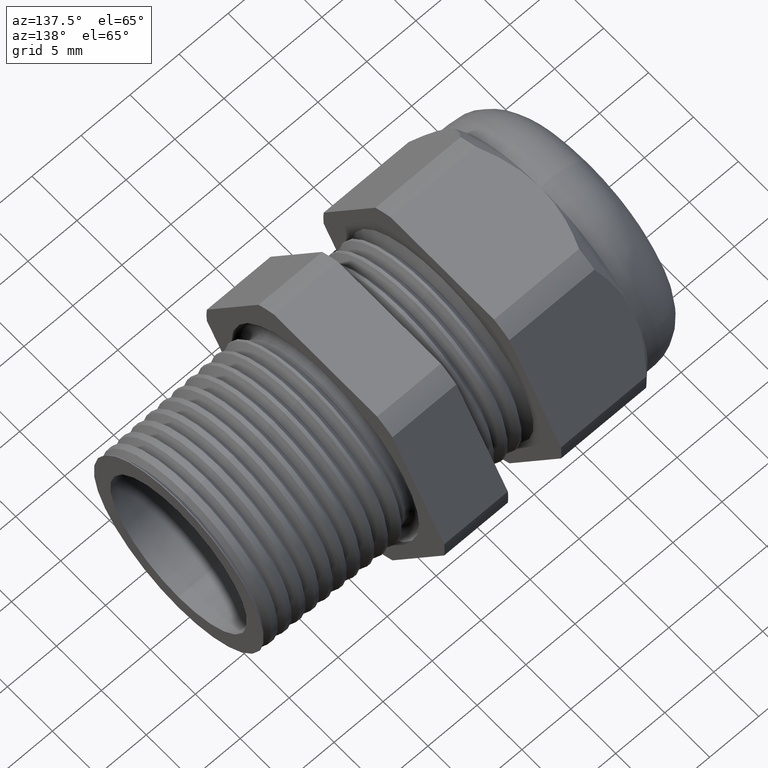
[diagram: clean part render]
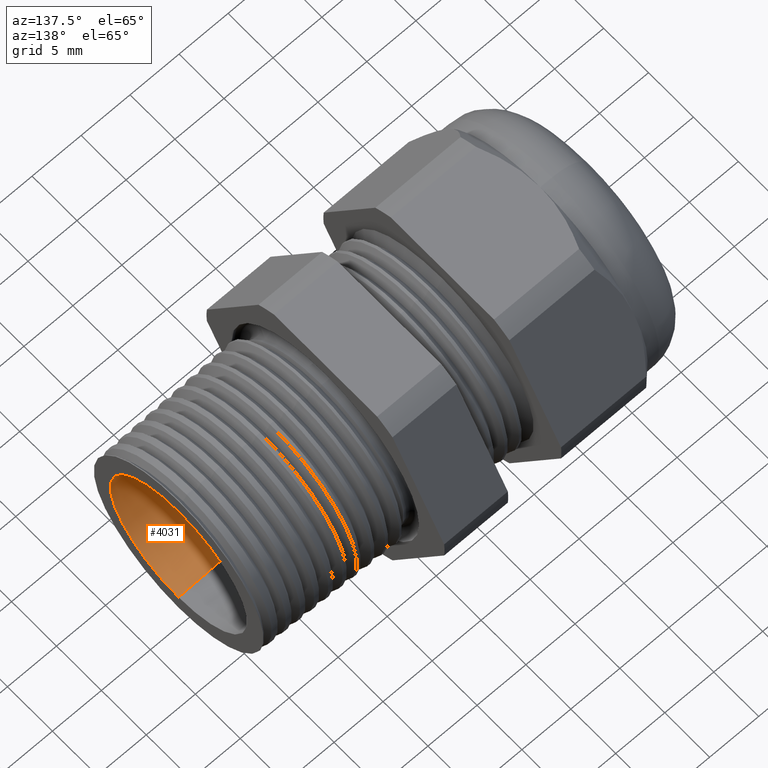
[diagram: same view with one face highlighted and labeled with its STEP entity id]
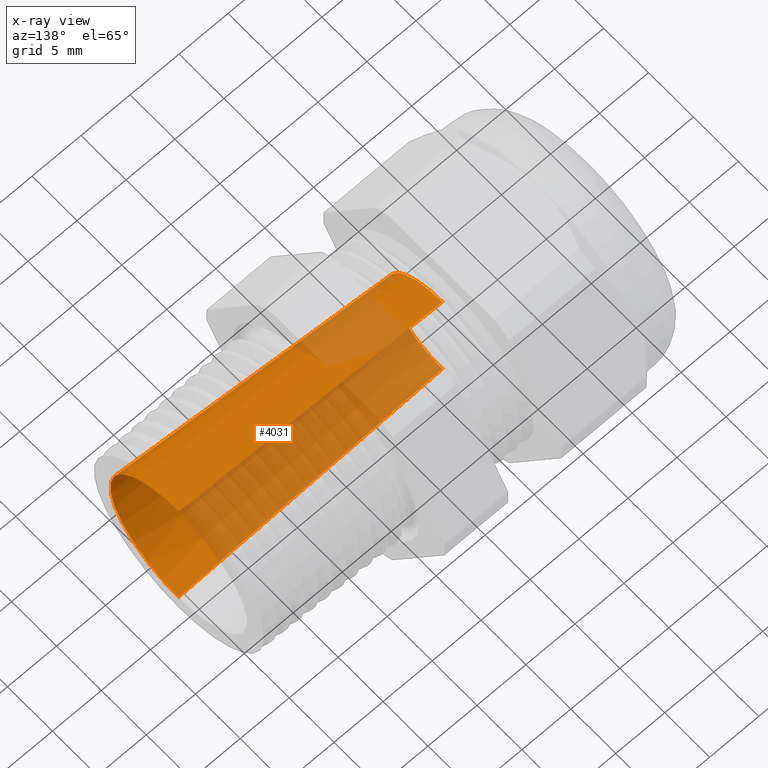
[diagram: x-ray of the same camera — body ghosted, the highlighted face saturated]
A machine part, auxiliary view. The second image highlights one B-rep face of the part: STEP entity #4031.
The next image is the same camera in x-ray: the body ghosted, the highlighted face saturated — about 50% of this face is hidden behind the body in this view.
In plain terms, the highlighted conical surface has half-angle 3.511 deg.
Its self-contained STEP definition (entity closure, byte-faithful):
#3067 = LINE ( 'NONE', #3123, #3122 ) ;
#3121 = DIRECTION ( 'NONE',  ( 0.9981232224324919600, 0.0000000000000000000, -0.06123751171445730000 ) ) ;
#3122 = VECTOR ( 'NONE', #3121, 39.37007874015748900 ) ;
#3123 = CARTESIAN_POINT ( 'NONE',  ( -0.7794488188976376200, 0.0000000000000000000, -0.2349999999999999900 ) ) ;
#3157 = CARTESIAN_POINT ( 'NONE',  ( 0.2800000000000000300, 3.673940397442060700E-017, 0.3000000000000000400 ) ) ;
#3158 = DIRECTION ( 'NONE',  ( 0.9981232224324919600, 7.499432270885866300E-018, 0.06123751171445730000 ) ) ;
#3159 = VECTOR ( 'NONE', #3158, 39.37007874015748900 ) ;
#3160 = CARTESIAN_POINT ( 'NONE',  ( -0.7794488188976376200, 2.877919977996279800E-017, 0.2349999999999999900 ) ) ;
#3161 = LINE ( 'NONE', #3160, #3159 ) ;
#3162 = CARTESIAN_POINT ( 'NONE',  ( -0.7794488188976376200, 0.0000000000000000000, -0.2349999999999999900 ) ) ;
#3163 = CARTESIAN_POINT ( 'NONE',  ( -0.7794488188976376200, 2.877919977996279800E-017, 0.2349999999999999900 ) ) ;
#3164 = DIRECTION ( 'NONE',  ( 0.0000000000000000000, 0.0000000000000000000, -1.000000000000000000 ) ) ;
#3165 = DIRECTION ( 'NONE',  ( 1.000000000000000000, 0.0000000000000000000, 0.0000000000000000000 ) ) ;
#3166 = AXIS2_PLACEMENT_3D ( 'NONE', #3173, #3165, #3164 ) ;
#3167 = CIRCLE ( 'NONE', #3166, 0.2349999999999999900 ) ;
#3168 = DIRECTION ( 'NONE',  ( 0.0000000000000000000, 0.0000000000000000000, -1.000000000000000000 ) ) ;
#3169 = DIRECTION ( 'NONE',  ( 1.000000000000000000, 0.0000000000000000000, 0.0000000000000000000 ) ) ;
#3170 = CARTESIAN_POINT ( 'NONE',  ( -0.7794488188976376200, 0.0000000000000000000, 0.0000000000000000000 ) ) ;
#3171 = AXIS2_PLACEMENT_3D ( 'NONE', #3170, #3169, #3168 ) ;
#3172 = CONICAL_SURFACE ( 'NONE', #3171, 0.2349999999999999900, 0.06127585022657041500 ) ;
#3173 = CARTESIAN_POINT ( 'NONE',  ( -0.7794488188976376200, 0.0000000000000000000, 0.0000000000000000000 ) ) ;
#3174 = FACE_OUTER_BOUND ( 'NONE', #4032, .T. ) ;
#3215 = CARTESIAN_POINT ( 'NONE',  ( 0.2800000000000000300, 0.0000000000000000000, -0.3000000000000000400 ) ) ;
#3216 = DIRECTION ( 'NONE',  ( 0.0000000000000000000, 0.0000000000000000000, -1.000000000000000000 ) ) ;
#3217 = DIRECTION ( 'NONE',  ( 1.000000000000000000, 0.0000000000000000000, 0.0000000000000000000 ) ) ;
#3218 = CARTESIAN_POINT ( 'NONE',  ( 0.2800000000000000300, 0.0000000000000000000, 0.0000000000000000000 ) ) ;
#3219 = AXIS2_PLACEMENT_3D ( 'NONE', #3218, #3217, #3216 ) ;
#3220 = CIRCLE ( 'NONE', #3219, 0.3000000000000000400 ) ;
#3993 = ORIENTED_EDGE ( 'NONE', *, *, #3994, .F. ) ;
#3994 = EDGE_CURVE ( 'NONE', #4036, #4043, #3067, .T. ) ;
#4031 = ADVANCED_FACE ( 'NONE', ( #3174 ), #3172, .F. ) ;
#4032 = EDGE_LOOP ( 'NONE', ( #4033, #4037, #4040, #3993 ) ) ;
#4033 = ORIENTED_EDGE ( 'NONE', *, *, #4034, .F. ) ;
#4034 = EDGE_CURVE ( 'NONE', #4035, #4036, #3167, .T. ) ;
#4035 = VERTEX_POINT ( 'NONE', #3163 ) ;
#4036 = VERTEX_POINT ( 'NONE', #3162 ) ;
#4037 = ORIENTED_EDGE ( 'NONE', *, *, #4038, .T. ) ;
#4038 = EDGE_CURVE ( 'NONE', #4035, #4039, #3161, .T. ) ;
#4039 = VERTEX_POINT ( 'NONE', #3157 ) ;
#4040 = ORIENTED_EDGE ( 'NONE', *, *, #4041, .T. ) ;
#4041 = EDGE_CURVE ( 'NONE', #4039, #4043, #3220, .T. ) ;
#4043 = VERTEX_POINT ( 'NONE', #3215 ) ;